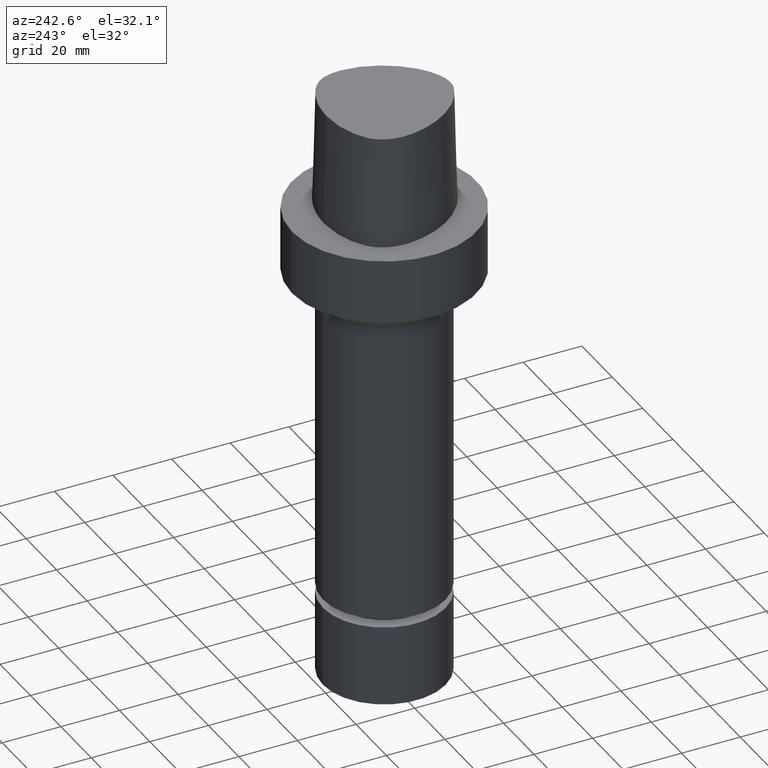
[diagram: clean part render]
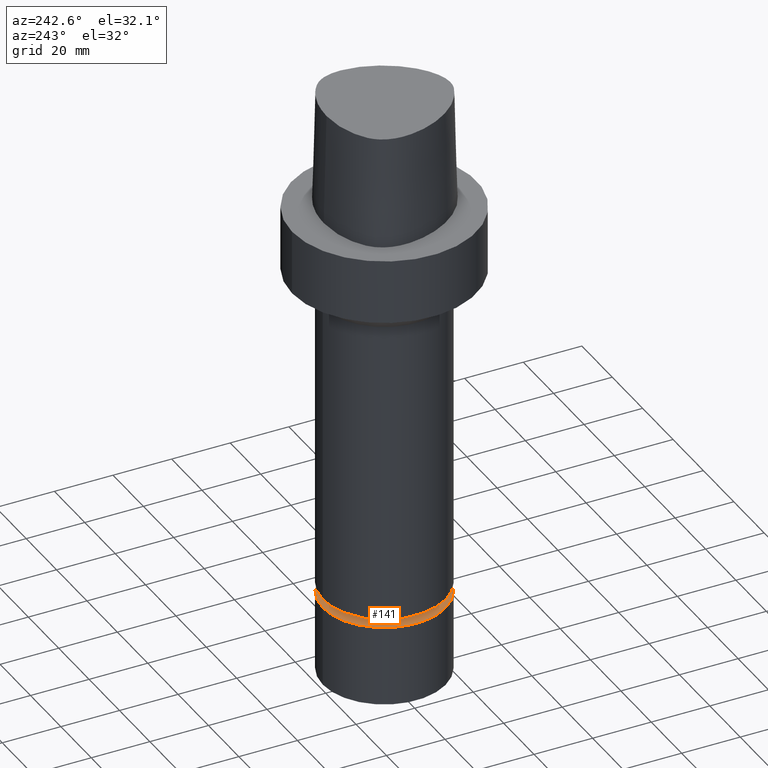
[diagram: same view with one face highlighted and labeled with its STEP entity id]
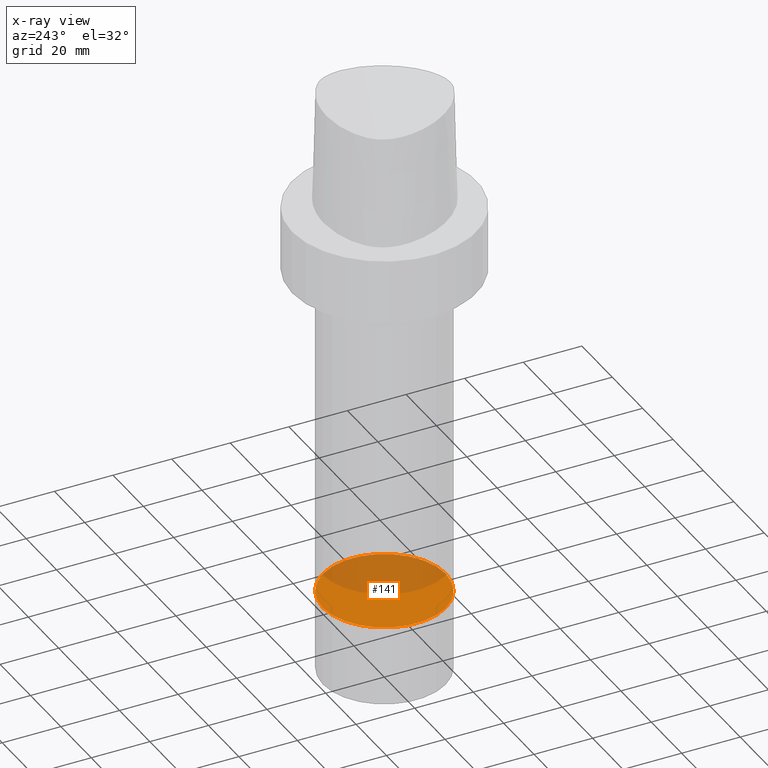
[diagram: x-ray of the same camera — body ghosted, the highlighted face saturated]
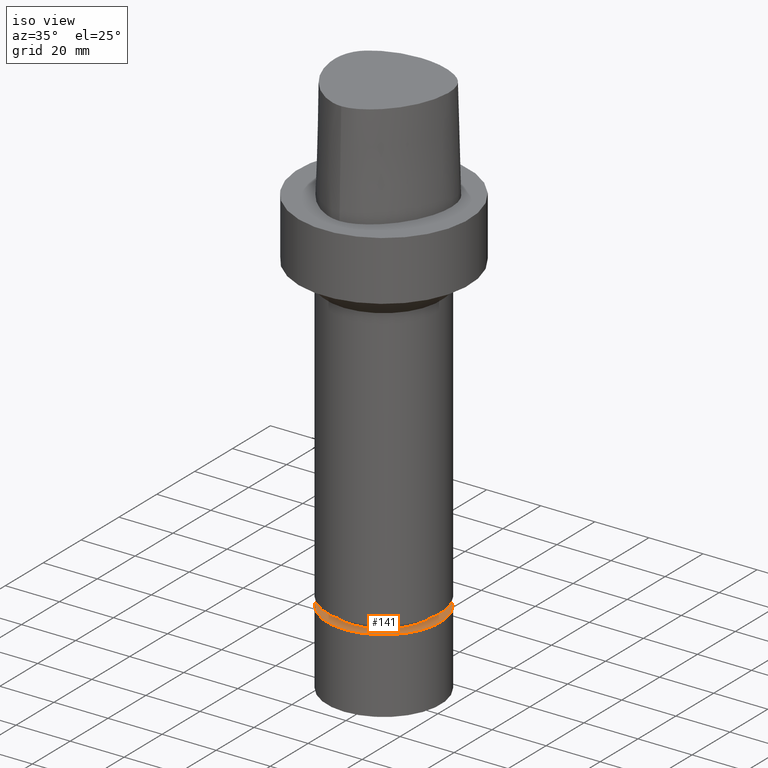
[diagram: same view with one face highlighted and labeled with its STEP entity id]
A machine part, auxiliary view. The second image highlights one B-rep face of the part: STEP entity #141.
The next image is the same camera in x-ray: the body ghosted, the highlighted face saturated — about 45% of this face is hidden behind the body in this view.
A second angle (iso view) of the same face is appended — the face is thin or edge-on in the first view.
In plain terms, the highlighted planar face has unit normal (-0, -0, 1).
Its self-contained STEP definition (entity closure, byte-faithful):
#141=ADVANCED_FACE('Unnamed[1]',(#292),#293,.T.);
#168=EDGE_CURVE('Unnamed[1]',#331,#331,#332,.T.);
#292=FACE_OUTER_BOUND('',#675,.T.);
#293=PLANE('',#676);
#331=VERTEX_POINT('',#756);
#332=CIRCLE('',#757,21.0);
#675=EDGE_LOOP('',(#865));
#676=AXIS2_PLACEMENT_3D('',#866,#867,#868);
#756=CARTESIAN_POINT('',(8.41944674413805E-015,21.0,-137.5));
#757=AXIS2_PLACEMENT_3D('',#906,#907,#908);
#865=ORIENTED_EDGE('',*,*,#168,.F.);
#866=CARTESIAN_POINT('',(8.41944674413805E-015,10.5,-137.5));
#867=DIRECTION('',(-6.12323399573677E-017,-1.22464679914735E-016,1.0));
#868=DIRECTION('',(1.23259516440783E-032,-1.0,-1.22464679914735E-016));
#906=CARTESIAN_POINT('',(8.41944674413805E-015,1.68388934882761E-014,-137.5));
#907=DIRECTION('',(6.12323399573677E-017,1.22464679914735E-016,-1.0));
#908=DIRECTION('',(-1.23259516440783E-032,1.0,1.22464679914735E-016));